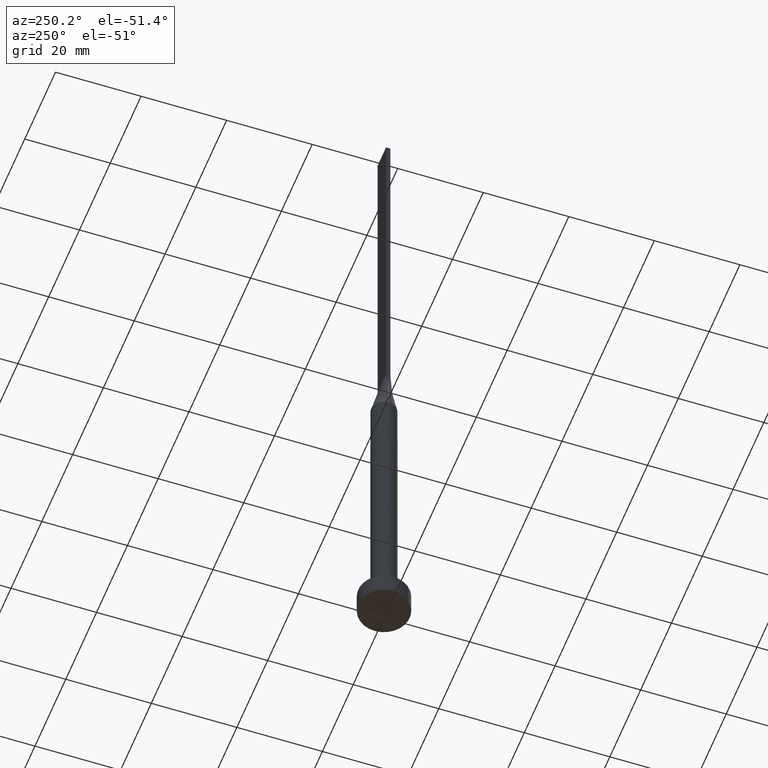
[diagram: clean part render]
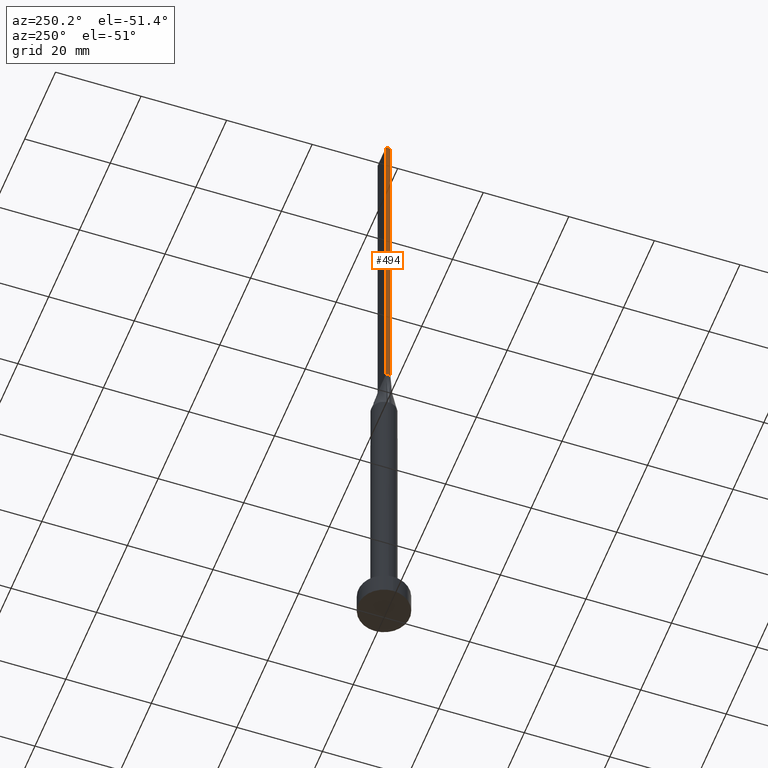
[diagram: same view with one face highlighted and labeled with its STEP entity id]
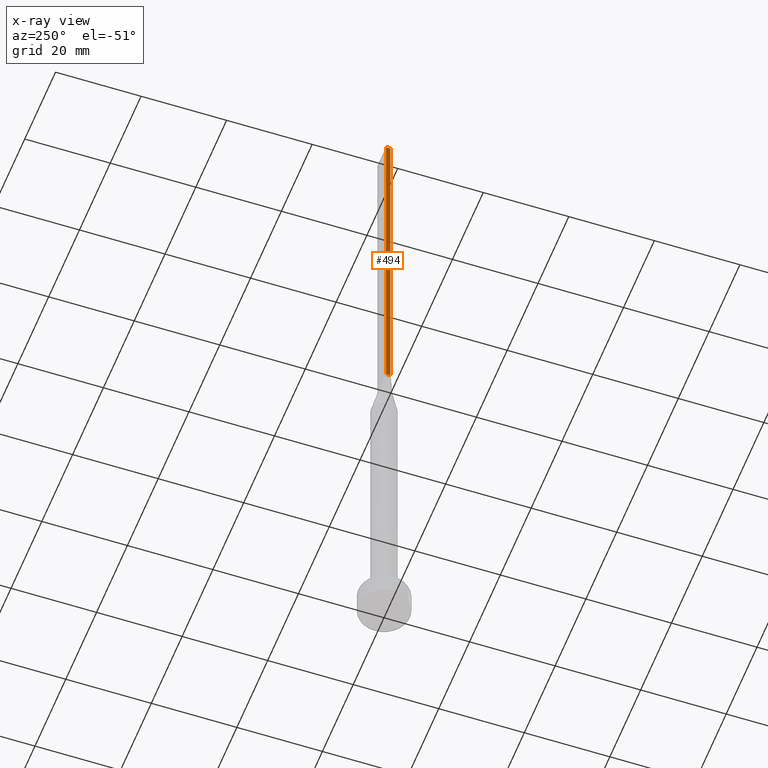
[diagram: x-ray of the same camera — body ghosted, the highlighted face saturated]
A machine part, auxiliary view. The second image highlights one B-rep face of the part: STEP entity #494.
The next image is the same camera in x-ray: the body ghosted, the highlighted face saturated — about 0% of this face is hidden behind the body in this view.
In plain terms, the highlighted planar face has unit normal (1, 0, -0).
Its self-contained STEP definition (entity closure, byte-faithful):
#13 = CARTESIAN_POINT ( 'NONE',  ( -2.750000000000000000, 0.5000000000000002220, 160.0000000000000000 ) ) ;
#17 = CARTESIAN_POINT ( 'NONE',  ( -2.750000000000000000, 0.5000000000000002220, 160.0000000000000000 ) ) ;
#58 = LINE ( 'NONE', #116, #516 ) ;
#73 = VECTOR ( 'NONE', #209, 1000.000000000000000 ) ;
#88 = DIRECTION ( 'NONE',  ( 0.000000000000000000, -1.000000000000000000, 0.000000000000000000 ) ) ;
#98 = CARTESIAN_POINT ( 'NONE',  ( -2.750000000000000000, 0.5000000000000002220, 160.0000000000000000 ) ) ;
#102 = CARTESIAN_POINT ( 'NONE',  ( -2.750000000000000000, -0.4999999999999994449, 80.00000000000000000 ) ) ;
#105 = FACE_OUTER_BOUND ( 'NONE', #559, .T. ) ;
#116 = CARTESIAN_POINT ( 'NONE',  ( -2.750000000000000000, -0.4999999999999994449, 160.0000000000000000 ) ) ;
#133 = ORIENTED_EDGE ( 'NONE', *, *, #165, .T. ) ;
#139 = LINE ( 'NONE', #493, #73 ) ;
#156 = ORIENTED_EDGE ( 'NONE', *, *, #571, .T. ) ;
#162 = ORIENTED_EDGE ( 'NONE', *, *, #465, .F. ) ;
#165 = EDGE_CURVE ( 'NONE', #421, #565, #139, .T. ) ;
#179 = DIRECTION ( 'NONE',  ( -0.000000000000000000, 0.000000000000000000, -1.000000000000000000 ) ) ;
#188 = DIRECTION ( 'NONE',  ( -0.000000000000000000, -0.000000000000000000, -1.000000000000000000 ) ) ;
#199 = AXIS2_PLACEMENT_3D ( 'NONE', #13, #555, #179 ) ;
#209 = DIRECTION ( 'NONE',  ( 0.000000000000000000, -1.000000000000000000, 0.000000000000000000 ) ) ;
#210 = CARTESIAN_POINT ( 'NONE',  ( -2.750000000000000000, -0.4999999999999994449, 160.0000000000000000 ) ) ;
#277 = LINE ( 'NONE', #17, #529 ) ;
#331 = DIRECTION ( 'NONE',  ( -0.000000000000000000, -0.000000000000000000, -1.000000000000000000 ) ) ;
#375 = PLANE ( 'NONE',  #199 ) ;
#382 = EDGE_CURVE ( 'NONE', #424, #427, #443, .T. ) ;
#409 = CARTESIAN_POINT ( 'NONE',  ( -2.750000000000000000, 0.5000000000000002220, 80.00000000000000000 ) ) ;
#421 = VERTEX_POINT ( 'NONE', #409 ) ;
#424 = VERTEX_POINT ( 'NONE', #98 ) ;
#427 = VERTEX_POINT ( 'NONE', #210 ) ;
#435 = VECTOR ( 'NONE', #88, 1000.000000000000000 ) ;
#443 = LINE ( 'NONE', #539, #435 ) ;
#465 = EDGE_CURVE ( 'NONE', #427, #565, #58, .T. ) ;
#484 = ORIENTED_EDGE ( 'NONE', *, *, #382, .F. ) ;
#493 = CARTESIAN_POINT ( 'NONE',  ( -2.750000000000000000, 0.5000000000000002220, 80.00000000000000000 ) ) ;
#494 = ADVANCED_FACE ( 'NONE', ( #105 ), #375, .F. ) ;
#516 = VECTOR ( 'NONE', #331, 1000.000000000000000 ) ;
#529 = VECTOR ( 'NONE', #188, 1000.000000000000000 ) ;
#539 = CARTESIAN_POINT ( 'NONE',  ( -2.750000000000000000, 0.5000000000000002220, 160.0000000000000000 ) ) ;
#555 = DIRECTION ( 'NONE',  ( 1.000000000000000000, 0.000000000000000000, -0.000000000000000000 ) ) ;
#559 = EDGE_LOOP ( 'NONE', ( #133, #162, #484, #156 ) ) ;
#565 = VERTEX_POINT ( 'NONE', #102 ) ;
#571 = EDGE_CURVE ( 'NONE', #424, #421, #277, .T. ) ;